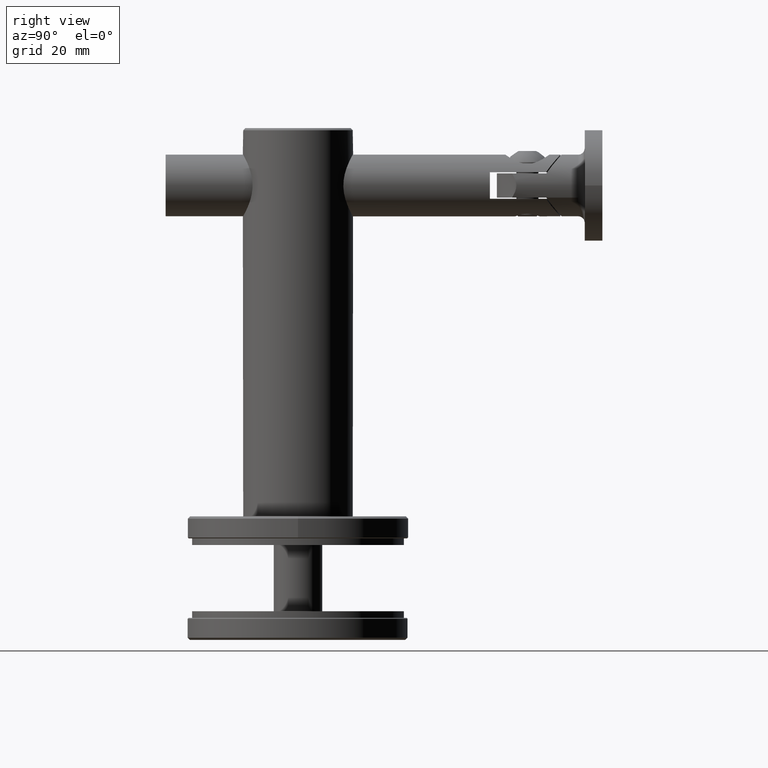
[diagram: clean part render]
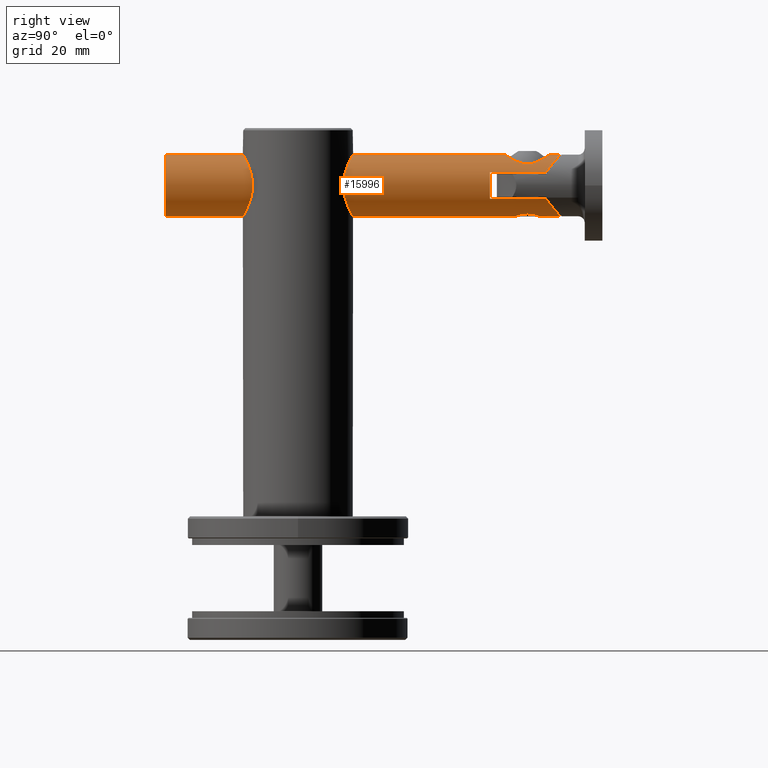
[diagram: same view with one face highlighted and labeled with its STEP entity id]
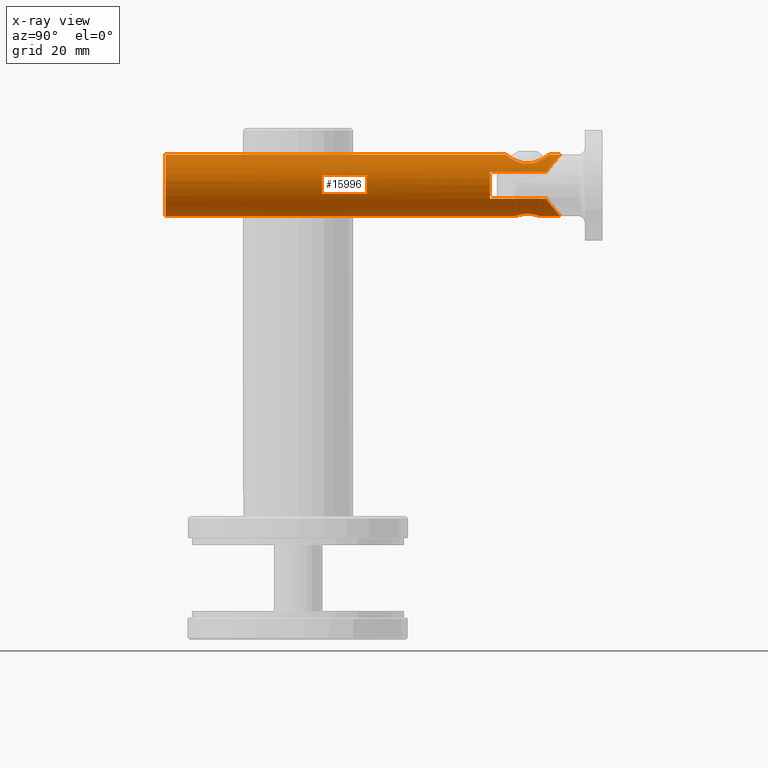
[diagram: x-ray of the same camera — body ghosted, the highlighted face saturated]
A machine part, right view. The second image highlights one B-rep face of the part: STEP entity #15996.
The next image is the same camera in x-ray: the body ghosted, the highlighted face saturated — about 0% of this face is hidden behind the body in this view.
In plain terms, the highlighted cylindrical surface (bore or boss wall) has radius 7 mm, axis along (-0, -1, -0).
Its self-contained STEP definition (entity closure, byte-faithful):
#28 = VERTEX_POINT ( 'NONE', #15196 ) ;
#37 = CARTESIAN_POINT ( 'NONE',  ( -6.324555320336759900, 86.22911821679221600, 2.999999999999997300 ) ) ;
#170 = EDGE_CURVE ( 'NONE', #5747, #895, #20245, .T. ) ;
#179 = CARTESIAN_POINT ( 'NONE',  ( -0.1708320720194732300, 89.50022952531284700, 7.000254117360194400 ) ) ;
#327 = CARTESIAN_POINT ( 'NONE',  ( -2.071457664861658700, 80.18251468045402000, -6.687766071139152200 ) ) ;
#391 = CARTESIAN_POINT ( 'NONE',  ( 4.898979485566356700, 81.00000000000001400, 4.999999999999999100 ) ) ;
#673 = DIRECTION ( 'NONE',  ( 0.0000000000000000000, 1.000000000000000000, 0.0000000000000000000 ) ) ;
#677 = CARTESIAN_POINT ( 'NONE',  ( 3.619266846054845400, 78.53930738716287900, 5.995511750858710800 ) ) ;
#687 = CARTESIAN_POINT ( 'NONE',  ( 1.816577320195462000, 79.92760596109909000, -6.761475116900923500 ) ) ;
#753 = CARTESIAN_POINT ( 'NONE',  ( 2.661337149544327200, 82.71628721917572600, -6.474471173527214200 ) ) ;
#807 = CARTESIAN_POINT ( 'NONE',  ( -4.134643339375577000, 79.17479465001653700, 5.651342518334878700 ) ) ;
#884 = CARTESIAN_POINT ( 'NONE',  ( -2.710505431213761100E-017, 84.75000000000001400, -6.999999999999999100 ) ) ;
#895 = VERTEX_POINT ( 'NONE', #18851 ) ;
#1190 = CARTESIAN_POINT ( 'NONE',  ( 1.414623252081837800, 89.37185099101115800, -6.857873205915090000 ) ) ;
#1266 = CARTESIAN_POINT ( 'NONE',  ( 4.925109422952113300, 87.75938110575464200, -5.012779696973009200 ) ) ;
#1327 = CARTESIAN_POINT ( 'NONE',  ( -6.060553476826094700, 86.60189120092432800, -3.556564754651358100 ) ) ;
#1335 = VECTOR ( 'NONE', #673, 1000.000000000000000 ) ;
#1407 = CARTESIAN_POINT ( 'NONE',  ( 2.766659901701651300, 88.99686025446094100, 6.438886438150894300 ) ) ;
#1680 = EDGE_CURVE ( 'NONE', #10767, #3586, #12045, .T. ) ;
#1686 = CARTESIAN_POINT ( 'NONE',  ( -4.927650716901704100, 87.75715858298261200, 5.010082225133492000 ) ) ;
#1788 = EDGE_LOOP ( 'NONE', ( #15408 ) ) ;
#1825 = CARTESIAN_POINT ( 'NONE',  ( -2.442152771851341200, 89.11344847989907700, 6.569635425306681300 ) ) ;
#1836 = CARTESIAN_POINT ( 'NONE',  ( 4.898979485566356700, 81.00000000000001400, 4.999999999999999100 ) ) ;
#1898 = CARTESIAN_POINT ( 'NONE',  ( -0.7158752425265080300, 89.46899521724175500, 6.965660251015655100 ) ) ;
#1948 = EDGE_LOOP ( 'NONE', ( #3707 ) ) ;
#1966 = CARTESIAN_POINT ( 'NONE',  ( -2.606395045487770500, 82.89507199105003100, -6.497089336995014000 ) ) ;
#1993 = LINE ( 'NONE', #13658, #11677 ) ;
#2028 = CARTESIAN_POINT ( 'NONE',  ( 4.839633333549911300, 80.70926441872416000, 5.058147116255173400 ) ) ;
#2061 = VERTEX_POINT ( 'NONE', #9694 ) ;
#2105 = CARTESIAN_POINT ( 'NONE',  ( -2.469199969938539900, 80.77586789437484100, -6.550469574283626500 ) ) ;
#2172 = ORIENTED_EDGE ( 'NONE', *, *, #19256, .T. ) ;
#2180 = CARTESIAN_POINT ( 'NONE',  ( -1.682963870502190100, 79.81777303405209500, -6.796379002353479100 ) ) ;
#2254 = CARTESIAN_POINT ( 'NONE',  ( 2.608172707936179600, 82.89000651806121300, -6.496375528918295400 ) ) ;
#2309 = CARTESIAN_POINT ( 'NONE',  ( -4.548511329816598400, 79.90433365806386200, 5.322635898918067100 ) ) ;
#2384 = CARTESIAN_POINT ( 'NONE',  ( 1.678690237137759000, 79.81453093522000600, -6.797428388528597800 ) ) ;
#2452 = CARTESIAN_POINT ( 'NONE',  ( 2.070740906206229000, 80.18153847660039400, -6.688013981450927400 ) ) ;
#2464 = VERTEX_POINT ( 'NONE', #2923 ) ;
#2824 = CARTESIAN_POINT ( 'NONE',  ( 4.462071165065935900, 88.11739680563549400, -5.432700433738454600 ) ) ;
#2923 = CARTESIAN_POINT ( 'NONE',  ( 0.0000000000000000000, 0.0000000000000000000, 6.999999999999999100 ) ) ;
#2938 = CARTESIAN_POINT ( 'NONE',  ( 3.614905331433776700, 85.46529085855618700, 5.998164343327515800 ) ) ;
#2958 = CARTESIAN_POINT ( 'NONE',  ( -1.795446388815784300, 89.29703466220864500, -6.774766342545606600 ) ) ;
#3005 = CARTESIAN_POINT ( 'NONE',  ( 3.415837379854716400, 85.66190556333231100, 6.114725322684308600 ) ) ;
#3028 = CARTESIAN_POINT ( 'NONE',  ( 1.433374368311944900, 89.37459550383636000, 6.860942068636460600 ) ) ;
#3039 = EDGE_CURVE ( 'NONE', #2464, #2464, #5541, .T. ) ;
#3072 = CARTESIAN_POINT ( 'NONE',  ( 4.898979485566356700, 82.99999999999998600, 4.999999999999999100 ) ) ;
#3087 = ORIENTED_EDGE ( 'NONE', *, *, #17086, .T. ) ;
#3112 = DIRECTION ( 'NONE',  ( 0.0000000000000000000, 0.0000000000000000000, -1.000000000000000000 ) ) ;
#3173 = CARTESIAN_POINT ( 'NONE',  ( 3.372654824286463300, 88.73545560400940200, 6.143196644362327600 ) ) ;
#3261 = EDGE_LOOP ( 'NONE', ( #7404, #2172, #17637, #18936, #8231, #10237, #11220, #4816 ) ) ;
#3274 = LINE ( 'NONE', #17022, #7326 ) ;
#3366 = VECTOR ( 'NONE', #10069, 1000.000000000000000 ) ;
#3520 = CARTESIAN_POINT ( 'NONE',  ( -3.367225610241182400, 88.73808392569647200, 6.146183844426517800 ) ) ;
#3558 = B_SPLINE_CURVE_WITH_KNOTS ( 'NONE', 3,
 ( #9654, #6235, #11298, #19244, #17756, #9508, #20875, #11160, #3173, #1407, #6300, #8009, #3028, #14918, #11441, #179, #5072, #1898, #13292, #4864, #6656, #1825, #11645, #3520, #16480, #9939, #1686, #11575, #5005, #13217, #13072, #37 ),
 .UNSPECIFIED., .F., .F.,
 ( 4, 2, 2, 2, 2, 2, 2, 2, 2, 2, 2, 2, 2, 2, 2, 4 ),
 ( 0.01528008297406659900, 0.01744185764059446100, 0.01852274497385838400, 0.01960363230712230300, 0.02068451964038622200, 0.02176540697365014100, 0.02284629430691406300, 0.02392718164017798600, 0.02446762530680994500, 0.02500806897344190500, 0.02608895630670581700, 0.02716984363996973600, 0.02825073097323365200, 0.03041250563976150000, 0.03149339297302543300, 0.03257428030628935900 ),
 .UNSPECIFIED. ) ;
#3586 = VERTEX_POINT ( 'NONE', #8993 ) ;
#3591 = CARTESIAN_POINT ( 'NONE',  ( -2.661148324266164900, 81.28345555786052000, -6.474547421383462600 ) ) ;
#3663 = CARTESIAN_POINT ( 'NONE',  ( -0.7177927998739558300, 84.66079994195757800, -6.965363184380154700 ) ) ;
#3707 = ORIENTED_EDGE ( 'NONE', *, *, #10408, .T. ) ;
#3734 = CARTESIAN_POINT ( 'NONE',  ( -2.186283639877384400, 80.32238253141682100, -6.650650602407702100 ) ) ;
#3765 = CIRCLE ( 'NONE', #18311, 6.999999999999999100 ) ;
#3804 = CARTESIAN_POINT ( 'NONE',  ( -2.731778752556962300, 82.36440252293115800, -6.445066868859143500 ) ) ;
#4000 = CARTESIAN_POINT ( 'NONE',  ( 2.185565648149782700, 83.67862347851638600, -6.650893256325724100 ) ) ;
#4070 = CARTESIAN_POINT ( 'NONE',  ( 2.749806574986836300, 81.81582488131091700, -6.437279226792822100 ) ) ;
#4133 = CARTESIAN_POINT ( 'NONE',  ( 0.7171364192753255700, 79.33893349190712700, -6.965464464115196800 ) ) ;
#4191 = CARTESIAN_POINT ( 'NONE',  ( 3.976657288431762800, 78.95669872114841300, 5.764672624529448600 ) ) ;
#4295 = VERTEX_POINT ( 'NONE', #15752 ) ;
#4364 = CARTESIAN_POINT ( 'NONE',  ( 2.436208839625645200, 89.11537843722753400, -6.571796790168397400 ) ) ;
#4438 = CARTESIAN_POINT ( 'NONE',  ( -6.324555320336759900, 86.22911821679221600, 2.999999999999997300 ) ) ;
#4442 = CARTESIAN_POINT ( 'NONE',  ( 6.059395603615740800, 86.60352612834042000, -3.559005765708956700 ) ) ;
#4517 = CARTESIAN_POINT ( 'NONE',  ( 1.933112387591221700, 89.25705866204617700, -6.730080470345492400 ) ) ;
#4566 = CARTESIAN_POINT ( 'NONE',  ( -3.619266846054845400, 85.46069261283707900, 5.995511750858710800 ) ) ;
#4586 = CARTESIAN_POINT ( 'NONE',  ( -5.135444140045439800, 87.56080041834199800, -4.766783065597560500 ) ) ;
#4633 = CARTESIAN_POINT ( 'NONE',  ( -0.6104354240936427100, 86.97140170716174600, 6.979499931743287500 ) ) ;
#4816 = ORIENTED_EDGE ( 'NONE', *, *, #14213, .T. ) ;
#4864 = CARTESIAN_POINT ( 'NONE',  ( -1.424298548345202900, 89.37633801090135000, 6.862877893622210100 ) ) ;
#4882 = CARTESIAN_POINT ( 'NONE',  ( 0.0000000000000000000, 73.50000000000000000, 0.0000000000000000000 ) ) ;
#5005 = CARTESIAN_POINT ( 'NONE',  ( -5.712705369129201600, 86.99328173882317100, 4.056836268195262100 ) ) ;
#5072 = CARTESIAN_POINT ( 'NONE',  ( -0.3541687347409526700, 89.49402537663688400, 6.993387205265690000 ) ) ;
#5314 = ORIENTED_EDGE ( 'NONE', *, *, #10496, .T. ) ;
#5422 = CARTESIAN_POINT ( 'NONE',  ( -0.1843727596880558600, 79.25023391884023700, -6.999908103376206700 ) ) ;
#5496 = CARTESIAN_POINT ( 'NONE',  ( 1.820941083946231900, 84.06845246183714000, -6.760279309565477800 ) ) ;
#5541 = CIRCLE ( 'NONE', #6378, 6.999999999999999100 ) ;
#5565 = FACE_OUTER_BOUND ( 'NONE', #3261, .T. ) ;
#5568 = CARTESIAN_POINT ( 'NONE',  ( 1.222102748769696500, 79.52989224514423900, -6.894547964581978900 ) ) ;
#5588 = VERTEX_POINT ( 'NONE', #20401 ) ;
#5627 = CARTESIAN_POINT ( 'NONE',  ( 2.299731958036056700, 77.52165531221291400, 6.635776688420710600 ) ) ;
#5747 = VERTEX_POINT ( 'NONE', #1836 ) ;
#5822 = FACE_BOUND ( 'NONE', #10512, .T. ) ;
#5876 = CARTESIAN_POINT ( 'NONE',  ( 0.0000000000000000000, 0.0000000000000000000, 0.0000000000000000000 ) ) ;
#5884 = EDGE_CURVE ( 'NONE', #4295, #5588, #13672, .T. ) ;
#6078 = VECTOR ( 'NONE', #8190, 1000.000000000000000 ) ;
#6135 = CARTESIAN_POINT ( 'NONE',  ( 4.421977009742368700, 84.35014470591239900, 5.429462876628999600 ) ) ;
#6202 = VERTEX_POINT ( 'NONE', #13623 ) ;
#6235 = CARTESIAN_POINT ( 'NONE',  ( 6.060285792426122400, 86.60226917371140600, 3.557129082916704800 ) ) ;
#6277 = CARTESIAN_POINT ( 'NONE',  ( 2.004173547763659100, 86.58994197997024900, 6.712845311740686300 ) ) ;
#6297 = CARTESIAN_POINT ( 'NONE',  ( -0.7389411897558341200, 89.47293901850568400, -6.970069743419795600 ) ) ;
#6300 = CARTESIAN_POINT ( 'NONE',  ( 2.449703906055181100, 89.11077870388302800, 6.566641529540416600 ) ) ;
#6378 = AXIS2_PLACEMENT_3D ( 'NONE', #5876, #7523, #12665 ) ;
#6423 = CARTESIAN_POINT ( 'NONE',  ( -2.780641105782204500, 86.19265095221747700, 6.441982059250345400 ) ) ;
#6656 = CARTESIAN_POINT ( 'NONE',  ( -1.769915728430260700, 89.30326962258362800, 6.781712032869050300 ) ) ;
#6729 = CARTESIAN_POINT ( 'NONE',  ( -0.8955389252712402400, 79.39374477550752800, -6.944489778815494700 ) ) ;
#6799 = CARTESIAN_POINT ( 'NONE',  ( -1.819711518684171700, 84.06945046778039900, -6.760598663414708800 ) ) ;
#6936 = CARTESIAN_POINT ( 'NONE',  ( -1.225674639950458300, 84.46832555671827000, -6.893907967638291700 ) ) ;
#7011 = CARTESIAN_POINT ( 'NONE',  ( -1.680462442602407500, 84.18417676817567500, -6.797005821099865000 ) ) ;
#7081 = CARTESIAN_POINT ( 'NONE',  ( 1.385854863368648000, 84.38192754872775900, -6.863113667763378200 ) ) ;
#7143 = CARTESIAN_POINT ( 'NONE',  ( -4.898979485566356700, 81.00000000000001400, 4.999999999999999100 ) ) ;
#7209 = CARTESIAN_POINT ( 'NONE',  ( 0.6104354240936427100, 77.02859829283826800, 6.979499931743287500 ) ) ;
#7218 = CARTESIAN_POINT ( 'NONE',  ( 2.606819564357611100, 81.10591695116706000, -6.496924977117127600 ) ) ;
#7276 = CARTESIAN_POINT ( 'NONE',  ( -2.988219876973893900, 77.98153769120139600, 6.334694368661176100 ) ) ;
#7326 = VECTOR ( 'NONE', #15658, 1000.000000000000000 ) ;
#7343 = CARTESIAN_POINT ( 'NONE',  ( -1.172527317746819200, 77.13030548139327900, 6.907427810759569000 ) ) ;
#7353 = CARTESIAN_POINT ( 'NONE',  ( 2.750190343333264400, 82.17835287948736300, -6.437115279298305700 ) ) ;
#7404 = ORIENTED_EDGE ( 'NONE', *, *, #1680, .T. ) ;
#7425 = CARTESIAN_POINT ( 'NONE',  ( 6.324555320336752800, 73.50000000000000000, 2.999999999999998200 ) ) ;
#7439 = ORIENTED_EDGE ( 'NONE', *, *, #170, .T. ) ;
#7492 = DIRECTION ( 'NONE',  ( -0.0000000000000000000, -1.000000000000000000, -0.0000000000000000000 ) ) ;
#7523 = DIRECTION ( 'NONE',  ( 0.0000000000000000000, 1.000000000000000000, 0.0000000000000000000 ) ) ;
#7647 = CARTESIAN_POINT ( 'NONE',  ( -3.379994369966394800, 88.73189524316750000, -6.139149664387119300 ) ) ;
#7810 = VERTEX_POINT ( 'NONE', #4438 ) ;
#7909 = CARTESIAN_POINT ( 'NONE',  ( 4.134643339375577000, 84.82520534998342000, 5.651342518334878700 ) ) ;
#7932 = CARTESIAN_POINT ( 'NONE',  ( -4.917961319889351500, 87.74678917191496900, -4.991165657995903600 ) ) ;
#7980 = CARTESIAN_POINT ( 'NONE',  ( -0.3075841348478602900, 86.99946705965081200, 6.999619328607963100 ) ) ;
#8009 = CARTESIAN_POINT ( 'NONE',  ( 1.784310280726326500, 89.29972510605350100, 6.777762685940048800 ) ) ;
#8190 = DIRECTION ( 'NONE',  ( -0.0000000000000000000, -1.000000000000000000, -0.0000000000000000000 ) ) ;
#8231 = ORIENTED_EDGE ( 'NONE', *, *, #11874, .T. ) ;
#8364 = CARTESIAN_POINT ( 'NONE',  ( -2.660244663762090200, 82.72007130241775000, -6.474920881826497200 ) ) ;
#8423 = CARTESIAN_POINT ( 'NONE',  ( 4.426164966053143200, 79.65756947946091800, 5.426071599279979700 ) ) ;
#8435 = CARTESIAN_POINT ( 'NONE',  ( -2.399702794726680000, 83.38986420423108800, -6.577483290828721100 ) ) ;
#8505 = CARTESIAN_POINT ( 'NONE',  ( -2.732024789745296700, 81.63780269255168800, -6.444960454782098200 ) ) ;
#8713 = CARTESIAN_POINT ( 'NONE',  ( -6.324555320336757300, 92.00000000000000000, 3.000000000000000000 ) ) ;
#8718 = CARTESIAN_POINT ( 'NONE',  ( 0.1773274584154867500, 79.24977059354976900, -7.000090123899746600 ) ) ;
#8779 = CARTESIAN_POINT ( 'NONE',  ( 0.3075841348478602900, 77.00053294034920300, 6.999619328607963100 ) ) ;
#8845 = CARTESIAN_POINT ( 'NONE',  ( 1.475203136158573800, 77.21357541974926200, 6.848675093871656300 ) ) ;
#8911 = CARTESIAN_POINT ( 'NONE',  ( -3.415837379854716400, 78.33809443666768900, 6.114725322684308600 ) ) ;
#8920 = CARTESIAN_POINT ( 'NONE',  ( 0.3672442640980363400, 84.75000000000002800, -6.999999999999999100 ) ) ;
#8993 = CARTESIAN_POINT ( 'NONE',  ( 6.324555320336758200, 86.22911821679221600, -3.000000000000001800 ) ) ;
#9140 = LINE ( 'NONE', #8713, #6078 ) ;
#9219 = LINE ( 'NONE', #16469, #3366 ) ;
#9297 = CARTESIAN_POINT ( 'NONE',  ( 2.754659698250624200, 89.00145416269265300, -6.444054170888958500 ) ) ;
#9483 = CARTESIAN_POINT ( 'NONE',  ( -2.299731958036056700, 86.47834468778707200, 6.635776688420710600 ) ) ;
#9508 = CARTESIAN_POINT ( 'NONE',  ( 4.448706863809171400, 88.10271647986050400, 5.413617281898848600 ) ) ;
#9556 = CARTESIAN_POINT ( 'NONE',  ( 0.5860100824662596300, 86.97446853429174500, 6.981688295460141800 ) ) ;
#9595 = CARTESIAN_POINT ( 'NONE',  ( -4.898979485566356700, 82.99999999999998600, 4.999999999999999100 ) ) ;
#9654 = CARTESIAN_POINT ( 'NONE',  ( 6.324555320336759000, 86.22911821679221600, 2.999999999999997300 ) ) ;
#9670 = DIRECTION ( 'NONE',  ( -0.0000000000000000000, -1.000000000000000000, -0.0000000000000000000 ) ) ;
#9694 = CARTESIAN_POINT ( 'NONE',  ( 4.898979485566356700, 82.99999999999998600, 4.999999999999999100 ) ) ;
#9719 = AXIS2_PLACEMENT_3D ( 'NONE', #10995, #12627, #14271 ) ;
#9939 = CARTESIAN_POINT ( 'NONE',  ( -4.465719392932154400, 88.11480147856596500, 5.429664096517385000 ) ) ;
#10069 = DIRECTION ( 'NONE',  ( 0.0000000000000000000, 1.000000000000000000, 0.0000000000000000000 ) ) ;
#10237 = ORIENTED_EDGE ( 'NONE', *, *, #16261, .T. ) ;
#10362 = CARTESIAN_POINT ( 'NONE',  ( 2.381797171614288300, 80.61394548347900000, -6.583163461929014900 ) ) ;
#10408 = EDGE_CURVE ( 'NONE', #13906, #13906, #10721, .T. ) ;
#10496 = EDGE_CURVE ( 'NONE', #17967, #2061, #12943, .T. ) ;
#10499 = CARTESIAN_POINT ( 'NONE',  ( 0.7270690641455844800, 84.67681216182973000, -6.970356471794839400 ) ) ;
#10512 = EDGE_LOOP ( 'NONE', ( #16860, #5314, #3087, #7439 ) ) ;
#10556 = CARTESIAN_POINT ( 'NONE',  ( -3.973478704353192700, 78.95250130833937900, 5.766886771113650700 ) ) ;
#10566 = CARTESIAN_POINT ( 'NONE',  ( 0.3605394467173384500, 79.26768030572824800, -6.992995863867172100 ) ) ;
#10575 = CARTESIAN_POINT ( 'NONE',  ( 0.0000000000000000000, 73.50000000000000000, 0.0000000000000000000 ) ) ;
#10624 = CARTESIAN_POINT ( 'NONE',  ( 4.137930488203155100, 79.17945956861666400, 5.648957477449073400 ) ) ;
#10631 = CARTESIAN_POINT ( 'NONE',  ( 1.228763892797353000, 84.46688112587470700, -6.893385524380597900 ) ) ;
#10721 = B_SPLINE_CURVE_WITH_KNOTS ( 'NONE', 3,
 ( #11929, #13423, #15068, #3663, #18110, #6936, #18323, #7011, #6799, #11857, #8435, #1966, #8364, #3804, #19814, #16620, #8505, #3591, #19740, #2105, #14920, #3734, #327, #15139, #2180, #13566, #16482, #6729, #11721, #13357, #5422, #8718, #10566, #4133, #16963, #5568, #17098, #2384, #687, #2452, #15464, #10362, #11996, #7218, #20366, #13782, #4070, #7353, #18667, #753, #2254, #12129, #18604, #4000, #13640, #5496, #18735, #7081, #10631, #10499, #8920, #884 ),
 .UNSPECIFIED., .T., .F.,
 ( 4, 2, 2, 2, 2, 2, 2, 2, 2, 2, 2, 2, 2, 2, 2, 2, 2, 2, 2, 2, 2, 2, 2, 2, 2, 2, 2, 2, 2, 2, 4 ),
 ( 0.0000000000000000000, 0.0005426679904109459000, 0.001085335980821891800, 0.001628003971232837700, 0.002170671961643783600, 0.003256007942465674500, 0.003798675932876619800, 0.004341343923287565400, 0.004884011913698511600, 0.005426679904109456800, 0.005969347894520402900, 0.006512015884931349000, 0.007054683875342295100, 0.007597351865753240400, 0.008140019856164186500, 0.008682687846575132600, 0.009225355836986078700, 0.009768023827397024800, 0.01031069181780797100, 0.01085335980821891500, 0.01139602779862986100, 0.01193869578904080800, 0.01248136377945175400, 0.01302403176986270000, 0.01356669976027364600, 0.01410936775068459200, 0.01465203574109553800, 0.01519470373150648200, 0.01573737172191742900, 0.01628003971232837600, 0.01736537569315026900 ),
 .UNSPECIFIED. ) ;
#10767 = VERTEX_POINT ( 'NONE', #13192 ) ;
#10781 = CARTESIAN_POINT ( 'NONE',  ( -4.839633333549911300, 83.29073558127586800, 5.058147116255173400 ) ) ;
#10943 = FACE_BOUND ( 'NONE', #1948, .T. ) ;
#10995 = CARTESIAN_POINT ( 'NONE',  ( 0.0000000000000000000, 92.00000000000000000, 0.0000000000000000000 ) ) ;
#11017 = CARTESIAN_POINT ( 'NONE',  ( -5.734102128558198800, 86.99264483334378900, -4.062031759999328500 ) ) ;
#11086 = CARTESIAN_POINT ( 'NONE',  ( -6.324555320336758200, 86.22911821679221600, -3.000000000000001800 ) ) ;
#11135 = CARTESIAN_POINT ( 'NONE',  ( -3.421553473819725100, 85.65657538789591300, 6.111525691552757600 ) ) ;
#11160 = CARTESIAN_POINT ( 'NONE',  ( 3.662519443295178000, 88.58706132749280500, 5.974205600433597500 ) ) ;
#11206 = CARTESIAN_POINT ( 'NONE',  ( -1.475203136158573800, 86.78642458025078100, 6.848675093871656300 ) ) ;
#11220 = ORIENTED_EDGE ( 'NONE', *, *, #5884, .T. ) ;
#11298 = CARTESIAN_POINT ( 'NONE',  ( 5.733142513008967700, 86.99391162108304300, 4.063715644963389600 ) ) ;
#11392 = LINE ( 'NONE', #12202, #12398 ) ;
#11441 = CARTESIAN_POINT ( 'NONE',  ( 0.3720041140973574500, 89.49952115337065100, 6.999469848273423400 ) ) ;
#11471 = EDGE_CURVE ( 'NONE', #895, #17967, #9219, .T. ) ;
#11575 = CARTESIAN_POINT ( 'NONE',  ( -5.529349794834750800, 87.18737894610852400, 4.303714351459682100 ) ) ;
#11645 = CARTESIAN_POINT ( 'NONE',  ( -2.760645904571037400, 88.99916267250336000, 6.441476410678595800 ) ) ;
#11677 = VECTOR ( 'NONE', #13929, 1000.000000000000000 ) ;
#11721 = CARTESIAN_POINT ( 'NONE',  ( -0.7237645451574156200, 79.34068275480149200, -6.964794021842021000 ) ) ;
#11857 = CARTESIAN_POINT ( 'NONE',  ( -2.195948279647488300, 83.69298911763372900, -6.651765806844050400 ) ) ;
#11874 = EDGE_CURVE ( 'NONE', #28, #7810, #3558, .T. ) ;
#11929 = CARTESIAN_POINT ( 'NONE',  ( -2.710505431213761100E-017, 84.75000000000001400, -6.999999999999999100 ) ) ;
#11996 = CARTESIAN_POINT ( 'NONE',  ( 2.468051694380037500, 80.77378078093845200, -6.550897895195269900 ) ) ;
#12045 = B_SPLINE_CURVE_WITH_KNOTS ( 'NONE', 3,
 ( #11086, #1327, #11017, #4586, #7932, #16054, #12726, #12650, #7647, #19310, #19036, #2958, #15982, #6297, #15769, #12505, #17476, #14149, #1190, #17611, #4517, #4364, #9297, #20668, #12578, #2824, #1266, #14226, #4442, #15845 ),
 .UNSPECIFIED., .F., .F.,
 ( 4, 2, 2, 2, 2, 2, 2, 2, 2, 2, 2, 2, 2, 2, 4 ),
 ( 0.03923391438674803800, 0.04139493730015400600, 0.04247544875685700000, 0.04355596021356000100, 0.04463647167026299500, 0.04571698312696598900, 0.04679749458366898300, 0.04787800604037198400, 0.04895851749707497800, 0.04949877322542647200, 0.05003902895377797300, 0.05111954041048096000, 0.05220005186718394700, 0.05436107478058993500, 0.05652209769399593000 ),
 .UNSPECIFIED. ) ;
#12056 = CARTESIAN_POINT ( 'NONE',  ( 1.192239523120524100, 77.13522546663585900, 6.903956519540248100 ) ) ;
#12129 = CARTESIAN_POINT ( 'NONE',  ( 2.470457099791763900, 83.22127728002408300, -6.549984855344327200 ) ) ;
#12131 = VERTEX_POINT ( 'NONE', #7425 ) ;
#12190 = CARTESIAN_POINT ( 'NONE',  ( -4.839624708239068000, 80.70922216350325600, 5.058155567299345500 ) ) ;
#12202 = CARTESIAN_POINT ( 'NONE',  ( 6.324555320336758200, 92.00000000000000000, -2.999999999999998200 ) ) ;
#12249 = CARTESIAN_POINT ( 'NONE',  ( -6.324555320336758200, 92.00000000000000000, -2.999999999999998200 ) ) ;
#12256 = CARTESIAN_POINT ( 'NONE',  ( -2.266863554783705500, 77.53430748583549800, 6.628038431484470500 ) ) ;
#12398 = VECTOR ( 'NONE', #7492, 1000.000000000000000 ) ;
#12464 = CARTESIAN_POINT ( 'NONE',  ( 0.0000000000000000000, 84.75000000000000000, -6.999999999999999100 ) ) ;
#12505 = CARTESIAN_POINT ( 'NONE',  ( 0.3497671856842480800, 89.50069798612612700, -7.000772770690280000 ) ) ;
#12578 = CARTESIAN_POINT ( 'NONE',  ( 3.652800932876794100, 88.59232238610593400, -5.980227722753383500 ) ) ;
#12627 = DIRECTION ( 'NONE',  ( -0.0000000000000000000, -1.000000000000000000, -0.0000000000000000000 ) ) ;
#12650 = CARTESIAN_POINT ( 'NONE',  ( -3.668769152028241700, 88.58366892340734500, -5.970321694375610600 ) ) ;
#12665 = DIRECTION ( 'NONE',  ( 0.0000000000000000000, 0.0000000000000000000, 1.000000000000000000 ) ) ;
#12703 = CARTESIAN_POINT ( 'NONE',  ( -3.976657288431762800, 85.04330127885158700, 5.764672624529448600 ) ) ;
#12726 = CARTESIAN_POINT ( 'NONE',  ( -4.203674794888591700, 88.26828322984172800, -5.606578853813122300 ) ) ;
#12768 = CARTESIAN_POINT ( 'NONE',  ( 4.548511329816598400, 84.09566634193613800, 5.322635898918067100 ) ) ;
#12908 = CARTESIAN_POINT ( 'NONE',  ( 0.2900063760935456800, 87.00051749145713100, 7.000369636473303500 ) ) ;
#12943 = B_SPLINE_CURVE_WITH_KNOTS ( 'NONE', 3,
 ( #20505, #10781, #15672, #17315, #17729, #19152, #12703, #4566, #11135, #6423, #9483, #11206, #17668, #4633, #7980, #12908, #9556, #15894, #20784, #6277, #19356, #20854, #14485, #3005, #2938, #16033, #7909, #6135, #12768, #21061, #19287, #3072 ),
 .UNSPECIFIED., .F., .F.,
 ( 4, 2, 2, 2, 2, 2, 2, 2, 2, 2, 2, 2, 2, 2, 2, 4 ),
 ( 0.0000000000000000000, 0.0008903713401082948700, 0.001780742680216589700, 0.002671114020324884600, 0.003561485360433179500, 0.005342228040649792600, 0.006232599380758099700, 0.007122970720866405800, 0.008013342060974712800, 0.008903713401083018100, 0.009794084741191323400, 0.01068445608129962900, 0.01157482742140793600, 0.01246519876151624300, 0.01335557010162454600, 0.01424594144173285300 ),
 .UNSPECIFIED. ) ;
#13072 = CARTESIAN_POINT ( 'NONE',  ( -6.192264615893467500, 86.41591388462727300, 3.278893292872632000 ) ) ;
#13192 = CARTESIAN_POINT ( 'NONE',  ( -6.324555320336758200, 86.22911821679221600, -3.000000000000001800 ) ) ;
#13217 = CARTESIAN_POINT ( 'NONE',  ( -6.043741256792860600, 86.60800346316200700, 3.544871614369401700 ) ) ;
#13292 = CARTESIAN_POINT ( 'NONE',  ( -0.8945440000771623900, 89.45026496198413200, 6.944906109251775200 ) ) ;
#13357 = CARTESIAN_POINT ( 'NONE',  ( -0.3660169853830148600, 79.26836406271837600, -6.992726396043567900 ) ) ;
#13414 = CARTESIAN_POINT ( 'NONE',  ( 4.550541201749037900, 79.90900948106927600, 5.320870568143504000 ) ) ;
#13423 = CARTESIAN_POINT ( 'NONE',  ( -0.1836221320490178400, 84.75000000000001400, -7.000000000000000000 ) ) ;
#13566 = CARTESIAN_POINT ( 'NONE',  ( -1.386160257658444400, 79.61818521702164700, -6.863067439063616600 ) ) ;
#13623 = CARTESIAN_POINT ( 'NONE',  ( 6.324555320336756400, 73.50000000000000000, -3.000000000000000000 ) ) ;
#13640 = CARTESIAN_POINT ( 'NONE',  ( 2.072909421294454500, 83.81586578501608600, -6.687320039122627500 ) ) ;
#13658 = CARTESIAN_POINT ( 'NONE',  ( 6.324555320336757300, 92.00000000000000000, 3.000000000000000000 ) ) ;
#13672 = CIRCLE ( 'NONE', #16070, 6.999999999999999100 ) ;
#13718 = DIRECTION ( 'NONE',  ( -0.0000000000000000000, -1.000000000000000000, -0.0000000000000000000 ) ) ;
#13772 = CARTESIAN_POINT ( 'NONE',  ( 3.421553473819725100, 78.34342461210407300, 6.111525691552757600 ) ) ;
#13782 = CARTESIAN_POINT ( 'NONE',  ( 2.731176873975664800, 81.63148220767590100, -6.445322398299544500 ) ) ;
#13906 = VERTEX_POINT ( 'NONE', #12464 ) ;
#13929 = DIRECTION ( 'NONE',  ( 0.0000000000000000000, 1.000000000000000000, 0.0000000000000000000 ) ) ;
#14149 = CARTESIAN_POINT ( 'NONE',  ( 1.239901295625974700, 89.40224497469303300, -6.891624710215854300 ) ) ;
#14213 = EDGE_CURVE ( 'NONE', #5588, #10767, #18404, .T. ) ;
#14226 = CARTESIAN_POINT ( 'NONE',  ( 5.729747912702356900, 86.99779505689156200, -4.068740834130320400 ) ) ;
#14271 = DIRECTION ( 'NONE',  ( 0.0000000000000000000, 0.0000000000000000000, -1.000000000000000000 ) ) ;
#14485 = CARTESIAN_POINT ( 'NONE',  ( 2.988219876973893900, 86.01846230879861800, 6.334694368661176100 ) ) ;
#14918 = CARTESIAN_POINT ( 'NONE',  ( 0.7289414277629956400, 89.47383732815151800, 6.971063946329146600 ) ) ;
#14920 = CARTESIAN_POINT ( 'NONE',  ( -2.384457372796943400, 80.61847925741047000, -6.582199679941025400 ) ) ;
#15068 = CARTESIAN_POINT ( 'NONE',  ( -0.3638283434192142200, 84.73179643663236500, -6.992791983921315500 ) ) ;
#15139 = CARTESIAN_POINT ( 'NONE',  ( -1.819848553133532200, 79.93061821121932600, -6.760569733628367200 ) ) ;
#15196 = CARTESIAN_POINT ( 'NONE',  ( 6.324555320336759000, 86.22911821679221600, 2.999999999999997300 ) ) ;
#15408 = ORIENTED_EDGE ( 'NONE', *, *, #3039, .T. ) ;
#15464 = CARTESIAN_POINT ( 'NONE',  ( 2.183511112423000900, 80.31881467071492900, -6.651562083835068000 ) ) ;
#15523 = CARTESIAN_POINT ( 'NONE',  ( -4.421977009742368700, 79.64985529408764400, 5.429462876628999600 ) ) ;
#15589 = CARTESIAN_POINT ( 'NONE',  ( -0.2900063760935456800, 76.99948250854288300, 7.000369636473303500 ) ) ;
#15658 = DIRECTION ( 'NONE',  ( -0.0000000000000000000, -1.000000000000000000, -0.0000000000000000000 ) ) ;
#15672 = CARTESIAN_POINT ( 'NONE',  ( -4.756956418564139500, 83.56557727722245900, 5.137164048736693200 ) ) ;
#15752 = CARTESIAN_POINT ( 'NONE',  ( -6.324555320336757300, 73.50000000000000000, 2.999999999999998200 ) ) ;
#15769 = CARTESIAN_POINT ( 'NONE',  ( -0.3800433329546377700, 89.49927244464906600, -6.999194491946672000 ) ) ;
#15845 = CARTESIAN_POINT ( 'NONE',  ( 6.324555320336758200, 86.22911821679221600, -3.000000000000001800 ) ) ;
#15894 = CARTESIAN_POINT ( 'NONE',  ( 1.172527317746819200, 86.86969451860673500, 6.907427810759569000 ) ) ;
#15982 = CARTESIAN_POINT ( 'NONE',  ( -1.445460648942785700, 89.37236608133154900, -6.858465558885002100 ) ) ;
#15996 = ADVANCED_FACE ( 'NONE', ( #10943, #5822, #5565, #16031 ), #18318, .T. ) ;
#16031 = FACE_OUTER_BOUND ( 'NONE', #1788, .T. ) ;
#16033 = CARTESIAN_POINT ( 'NONE',  ( 3.973478704353192700, 85.04749869166062100, 5.766886771113650700 ) ) ;
#16054 = CARTESIAN_POINT ( 'NONE',  ( -4.452603804045240900, 88.09997191179030600, -5.410397169680552800 ) ) ;
#16070 = AXIS2_PLACEMENT_3D ( 'NONE', #10575, #13718, #16975 ) ;
#16261 = EDGE_CURVE ( 'NONE', #7810, #4295, #9140, .T. ) ;
#16469 = CARTESIAN_POINT ( 'NONE',  ( -4.898979485566356700, 92.00000000000000000, 4.999999999999999100 ) ) ;
#16480 = CARTESIAN_POINT ( 'NONE',  ( -3.657235530305782400, 88.58994445630666800, 5.977508155596614100 ) ) ;
#16482 = CARTESIAN_POINT ( 'NONE',  ( -1.225914254322210800, 79.53186497473907900, -6.893842360817259900 ) ) ;
#16620 = CARTESIAN_POINT ( 'NONE',  ( -2.750222174978944200, 81.82200371004913100, -6.437101680704922800 ) ) ;
#16826 = CARTESIAN_POINT ( 'NONE',  ( 4.756956418564139500, 80.43442272277758300, 5.137164048736693200 ) ) ;
#16860 = ORIENTED_EDGE ( 'NONE', *, *, #11471, .T. ) ;
#16963 = CARTESIAN_POINT ( 'NONE',  ( 0.8893418951905537300, 79.39154481682973600, -6.945314806251102100 ) ) ;
#16975 = DIRECTION ( 'NONE',  ( 0.0000000000000000000, 0.0000000000000000000, -1.000000000000000000 ) ) ;
#17022 = CARTESIAN_POINT ( 'NONE',  ( 4.898979485566356700, 92.00000000000000000, 4.999999999999999100 ) ) ;
#17024 = CARTESIAN_POINT ( 'NONE',  ( -2.759197394509893500, 77.82053714633072200, 6.438663957947450300 ) ) ;
#17086 = EDGE_CURVE ( 'NONE', #2061, #5747, #3274, .T. ) ;
#17090 = CARTESIAN_POINT ( 'NONE',  ( -4.756686990366636900, 80.43325126141081700, 5.137444608518720200 ) ) ;
#17098 = CARTESIAN_POINT ( 'NONE',  ( 1.382498685967689300, 79.61610123355254100, -6.863798583345361400 ) ) ;
#17157 = CARTESIAN_POINT ( 'NONE',  ( 2.780641105782204500, 77.80734904778249500, 6.441982059250345400 ) ) ;
#17315 = CARTESIAN_POINT ( 'NONE',  ( -4.550541201749037900, 84.09099051893072400, 5.320870568143504000 ) ) ;
#17476 = CARTESIAN_POINT ( 'NONE',  ( 0.7107497837383238700, 89.47555294120456900, -6.972963517925947500 ) ) ;
#17494 = EDGE_CURVE ( 'NONE', #12131, #28, #1993, .T. ) ;
#17611 = CARTESIAN_POINT ( 'NONE',  ( 1.760796681566904300, 89.29939510958931200, -6.777254525242627300 ) ) ;
#17637 = ORIENTED_EDGE ( 'NONE', *, *, #17968, .T. ) ;
#17668 = CARTESIAN_POINT ( 'NONE',  ( -1.192239523120524100, 86.86477453336415500, 6.903956519540248100 ) ) ;
#17729 = CARTESIAN_POINT ( 'NONE',  ( -4.426164966053143200, 84.34243052053911100, 5.426071599279979700 ) ) ;
#17756 = CARTESIAN_POINT ( 'NONE',  ( 4.914746297437768700, 87.74943899589085600, 4.994348172364280600 ) ) ;
#17967 = VERTEX_POINT ( 'NONE', #9595 ) ;
#17968 = EDGE_CURVE ( 'NONE', #6202, #12131, #3765, .T. ) ;
#18110 = CARTESIAN_POINT ( 'NONE',  ( -0.8934201700715390700, 84.60705001422599000, -6.944785510654292600 ) ) ;
#18311 = AXIS2_PLACEMENT_3D ( 'NONE', #4882, #9670, #3112 ) ;
#18318 = CYLINDRICAL_SURFACE ( 'NONE', #9719, 6.999999999999999100 ) ;
#18323 = CARTESIAN_POINT ( 'NONE',  ( -1.382943896386208000, 84.38370475417657700, -6.863724086274949300 ) ) ;
#18404 = LINE ( 'NONE', #12249, #1335 ) ;
#18526 = CARTESIAN_POINT ( 'NONE',  ( -3.614905331433776700, 78.53470914144381300, 5.998164343327515800 ) ) ;
#18604 = CARTESIAN_POINT ( 'NONE',  ( 2.384541006121612100, 83.38146233214060000, -6.582176121886735000 ) ) ;
#18661 = CARTESIAN_POINT ( 'NONE',  ( -1.459497406017922000, 77.20895143931147700, 6.851924628215162900 ) ) ;
#18667 = CARTESIAN_POINT ( 'NONE',  ( 2.732635484204851500, 82.35844959808001400, -6.444702918742189400 ) ) ;
#18735 = CARTESIAN_POINT ( 'NONE',  ( 1.681304899442013900, 84.18343453870795700, -6.796773996101039800 ) ) ;
#18851 = CARTESIAN_POINT ( 'NONE',  ( -4.898979485566356700, 81.00000000000001400, 4.999999999999999100 ) ) ;
#18936 = ORIENTED_EDGE ( 'NONE', *, *, #17494, .T. ) ;
#19036 = CARTESIAN_POINT ( 'NONE',  ( -2.458491548171999800, 89.10779717274523600, -6.563299935152077300 ) ) ;
#19152 = CARTESIAN_POINT ( 'NONE',  ( -4.137930488203155100, 84.82054043138333600, 5.648957477449073400 ) ) ;
#19244 = CARTESIAN_POINT ( 'NONE',  ( 5.131966938833488500, 87.56392065475355900, 4.770596641733377800 ) ) ;
#19256 = EDGE_CURVE ( 'NONE', #3586, #6202, #11392, .T. ) ;
#19287 = CARTESIAN_POINT ( 'NONE',  ( 4.839624708239068000, 83.29077783649673000, 5.058155567299345500 ) ) ;
#19310 = CARTESIAN_POINT ( 'NONE',  ( -2.774749103926561000, 88.99375527870925900, -6.435393379818186200 ) ) ;
#19356 = CARTESIAN_POINT ( 'NONE',  ( 2.266863554783705500, 86.46569251416451600, 6.628038431484470500 ) ) ;
#19740 = CARTESIAN_POINT ( 'NONE',  ( -2.608676248056745800, 81.11103648196828400, -6.496184139014581600 ) ) ;
#19814 = CARTESIAN_POINT ( 'NONE',  ( -2.749773621201270700, 82.18479643699988900, -6.437293304769149800 ) ) ;
#20220 = CARTESIAN_POINT ( 'NONE',  ( -2.004173547763659100, 77.41005802002975100, 6.712845311740686300 ) ) ;
#20245 = B_SPLINE_CURVE_WITH_KNOTS ( 'NONE', 3,
 ( #391, #2028, #16826, #13414, #8423, #10624, #4191, #677, #13772, #17157, #5627, #8845, #12056, #7209, #8779, #15589, #20289, #7343, #18661, #20220, #12256, #17024, #7276, #8911, #18526, #10556, #807, #15523, #2309, #17090, #12190, #7143 ),
 .UNSPECIFIED., .F., .F.,
 ( 4, 2, 2, 2, 2, 2, 2, 2, 2, 2, 2, 2, 2, 2, 2, 4 ),
 ( 0.0000000000000000000, 0.0008903713401082948700, 0.001780742680216589700, 0.002671114020324884600, 0.003561485360433179500, 0.005342228040649792600, 0.006232599380758099700, 0.007122970720866405800, 0.008013342060974712800, 0.008903713401083018100, 0.009794084741191323400, 0.01068445608129962900, 0.01157482742140793600, 0.01246519876151624300, 0.01335557010162454600, 0.01424594144173285300 ),
 .UNSPECIFIED. ) ;
#20289 = CARTESIAN_POINT ( 'NONE',  ( -0.5860100824662596300, 77.02553146570822700, 6.981688295460141800 ) ) ;
#20366 = CARTESIAN_POINT ( 'NONE',  ( 2.659500794431466400, 81.27737422920485200, -6.475226904084494500 ) ) ;
#20401 = CARTESIAN_POINT ( 'NONE',  ( -6.324555320336756400, 73.50000000000000000, -3.000000000000000000 ) ) ;
#20505 = CARTESIAN_POINT ( 'NONE',  ( -4.898979485566356700, 82.99999999999998600, 4.999999999999999100 ) ) ;
#20668 = CARTESIAN_POINT ( 'NONE',  ( 3.362034542776480200, 88.74059806168091300, -6.149041221499118100 ) ) ;
#20784 = CARTESIAN_POINT ( 'NONE',  ( 1.459497406017922000, 86.79104856068855200, 6.851924628215162900 ) ) ;
#20854 = CARTESIAN_POINT ( 'NONE',  ( 2.759197394509893500, 86.17946285366929300, 6.438663957947450300 ) ) ;
#20875 = CARTESIAN_POINT ( 'NONE',  ( 4.199224853540028100, 88.27119367124032600, 5.609963623605692000 ) ) ;
#21061 = CARTESIAN_POINT ( 'NONE',  ( 4.756686990366636900, 83.56674873858914100, 5.137444608518720200 ) ) ;